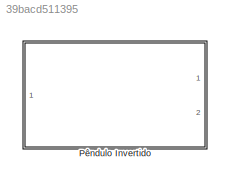
MODEL slx_39bacd511395
KIND library
CONFIG AbsTol = auto
CONFIG EnableMultiTasking = off
CONFIG FixedStep = auto
CONFIG MaxStep = auto
CONFIG MinStep = auto
CONFIG RelTol = 1e-3
CONFIG SampleTimeConstraint = Unconstrained
CONFIG Solver = VariableStepAuto
CONFIG SolverName = VariableStepAuto
CONFIG StartTime = 0.0
CONFIG StopTime = 10.0
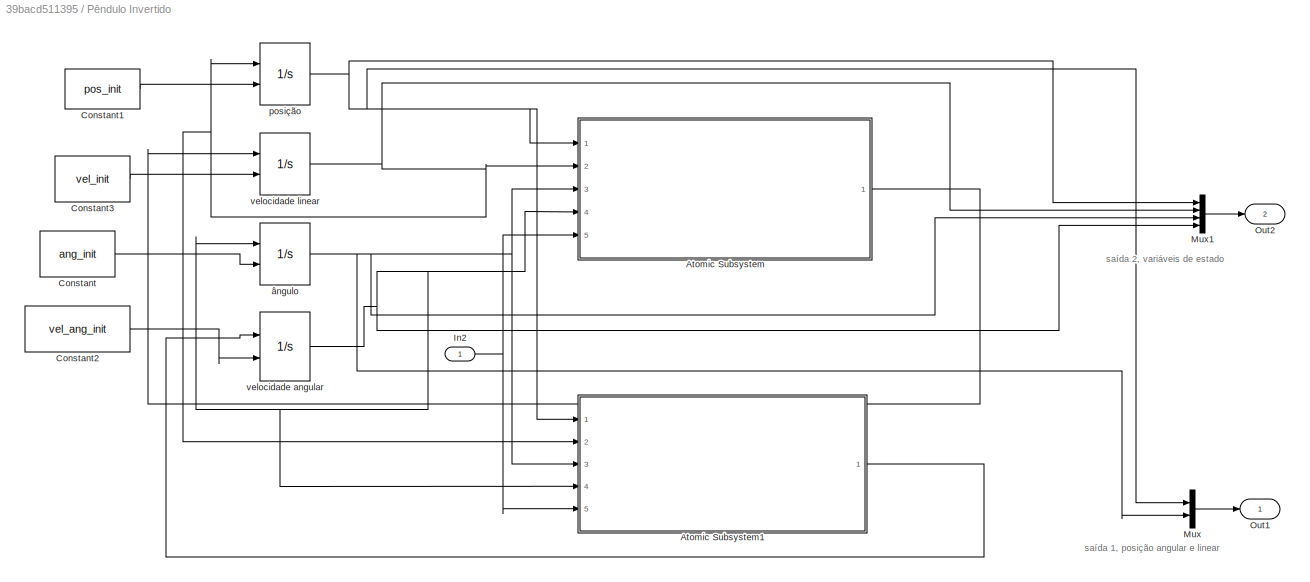
BLOCK [SubSystem] Pêndulo Invertido
  Ports = [1, 2]
  RequestExecContextInheritance = off
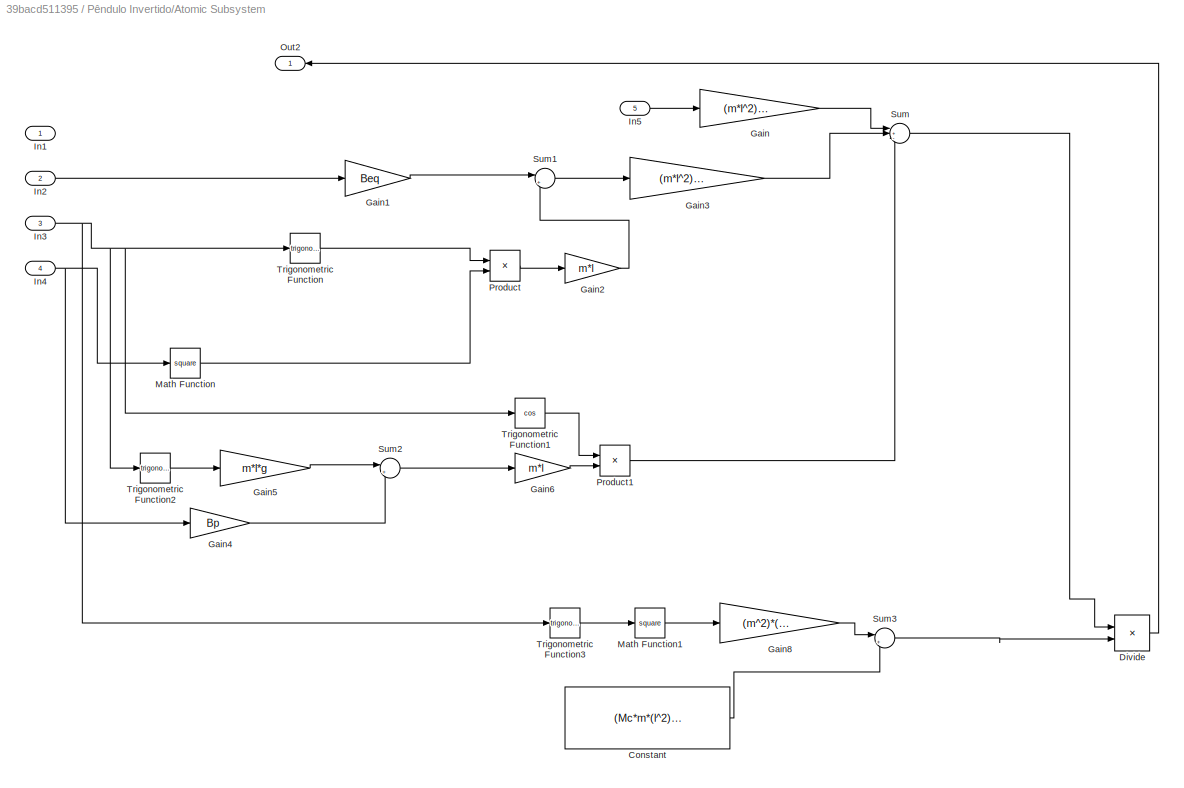
BLOCK [SubSystem] Pêndulo Invertido/Atomic Subsystem
  Ports = [5, 1]
  RequestExecContextInheritance = off
  TreatAsAtomicUnit = on
BLOCK [Constant] Pêndulo Invertido/Atomic Subsystem/Constant
  Value = (Mc*m*(l^2)) + (J*(Mc+m))
BLOCK [Product] Pêndulo Invertido/Atomic Subsystem/Divide
  InputSameDT = off
  Inputs = */
  OutDataTypeStr = Inherit: Inherit via internal rule
  Ports = [2, 1]
  RndMeth = Floor
  SaturateOnIntegerOverflow = off
BLOCK [Gain] Pêndulo Invertido/Atomic Subsystem/Gain
  Gain = (m*l^2) + J
  OutDataTypeStr = Inherit: Inherit via internal rule
  ParamDataTypeStr = Inherit: Inherit via internal rule
  SaturateOnIntegerOverflow = off
BLOCK [Gain] Pêndulo Invertido/Atomic Subsystem/Gain1
  Gain = Beq
  OutDataTypeStr = Inherit: Inherit via internal rule
  ParamDataTypeStr = Inherit: Inherit via internal rule
  SaturateOnIntegerOverflow = off
BLOCK [Gain] Pêndulo Invertido/Atomic Subsystem/Gain2
  Gain = m*l
  OutDataTypeStr = Inherit: Inherit via internal rule
  ParamDataTypeStr = Inherit: Inherit via internal rule
  SaturateOnIntegerOverflow = off
BLOCK [Gain] Pêndulo Invertido/Atomic Subsystem/Gain3
  Gain = (m*l^2) + J
  OutDataTypeStr = Inherit: Inherit via internal rule
  ParamDataTypeStr = Inherit: Inherit via internal rule
  SaturateOnIntegerOverflow = off
BLOCK [Gain] Pêndulo Invertido/Atomic Subsystem/Gain4
  Gain = Bp
  OutDataTypeStr = Inherit: Inherit via internal rule
  ParamDataTypeStr = Inherit: Inherit via internal rule
  SaturateOnIntegerOverflow = off
BLOCK [Gain] Pêndulo Invertido/Atomic Subsystem/Gain5
  Gain = m*l*g
  OutDataTypeStr = Inherit: Inherit via internal rule
  ParamDataTypeStr = Inherit: Inherit via internal rule
  SaturateOnIntegerOverflow = off
BLOCK [Gain] Pêndulo Invertido/Atomic Subsystem/Gain6
  Gain = m*l
  OutDataTypeStr = Inherit: Inherit via internal rule
  ParamDataTypeStr = Inherit: Inherit via internal rule
  SaturateOnIntegerOverflow = off
BLOCK [Gain] Pêndulo Invertido/Atomic Subsystem/Gain8
  Gain = (m^2)*(l^2)
  OutDataTypeStr = Inherit: Inherit via internal rule
  ParamDataTypeStr = Inherit: Inherit via internal rule
  SaturateOnIntegerOverflow = off
BLOCK [Inport] Pêndulo Invertido/Atomic Subsystem/In1
  IconDisplay = Port number
BLOCK [Inport] Pêndulo Invertido/Atomic Subsystem/In2
  IconDisplay = Port number
  Port = 2
BLOCK [Inport] Pêndulo Invertido/Atomic Subsystem/In3
  IconDisplay = Port number
  Port = 3
BLOCK [Inport] Pêndulo Invertido/Atomic Subsystem/In4
  IconDisplay = Port number
  Port = 4
BLOCK [Inport] Pêndulo Invertido/Atomic Subsystem/In5
  IconDisplay = Port number
  Port = 5
BLOCK [Math] Pêndulo Invertido/Atomic Subsystem/Math Function
  Operator = square
  Ports = [1, 1]
BLOCK [Math] Pêndulo Invertido/Atomic Subsystem/Math Function1
  Operator = square
  Ports = [1, 1]
BLOCK [Outport] Pêndulo Invertido/Atomic Subsystem/Out2
  IconDisplay = Port number
BLOCK [Product] Pêndulo Invertido/Atomic Subsystem/Product
  InputSameDT = off
  OutDataTypeStr = Inherit: Inherit via internal rule
  Ports = [2, 1]
  RndMeth = Floor
  SaturateOnIntegerOverflow = off
BLOCK [Product] Pêndulo Invertido/Atomic Subsystem/Product1
  InputSameDT = off
  OutDataTypeStr = Inherit: Inherit via internal rule
  Ports = [2, 1]
  RndMeth = Floor
  SaturateOnIntegerOverflow = off
BLOCK [Sum] Pêndulo Invertido/Atomic Subsystem/Sum
  IconShape = round
  InputSameDT = off
  Inputs = |+-+
  OutDataTypeStr = Inherit: Inherit via internal rule
  Ports = [3, 1]
  SaturateOnIntegerOverflow = off
BLOCK [Sum] Pêndulo Invertido/Atomic Subsystem/Sum1
  IconShape = round
  InputSameDT = off
  Inputs = |++
  OutDataTypeStr = Inherit: Inherit via internal rule
  Ports = [2, 1]
  SaturateOnIntegerOverflow = off
BLOCK [Sum] Pêndulo Invertido/Atomic Subsystem/Sum2
  IconShape = round
  InputSameDT = off
  Inputs = |+-
  OutDataTypeStr = Inherit: Inherit via internal rule
  Ports = [2, 1]
  SaturateOnIntegerOverflow = off
BLOCK [Sum] Pêndulo Invertido/Atomic Subsystem/Sum3
  IconShape = round
  InputSameDT = off
  Inputs = |++
  OutDataTypeStr = Inherit: Inherit via internal rule
  Ports = [2, 1]
  SaturateOnIntegerOverflow = off
BLOCK [Trigonometry] Pêndulo Invertido/Atomic Subsystem/Trigonometric Function
  Ports = [1, 1]
BLOCK [Trigonometry] Pêndulo Invertido/Atomic Subsystem/Trigonometric Function1
  Operator = cos
  Ports = [1, 1]
BLOCK [Trigonometry] Pêndulo Invertido/Atomic Subsystem/Trigonometric Function2
  Ports = [1, 1]
BLOCK [Trigonometry] Pêndulo Invertido/Atomic Subsystem/Trigonometric Function3
  Ports = [1, 1]
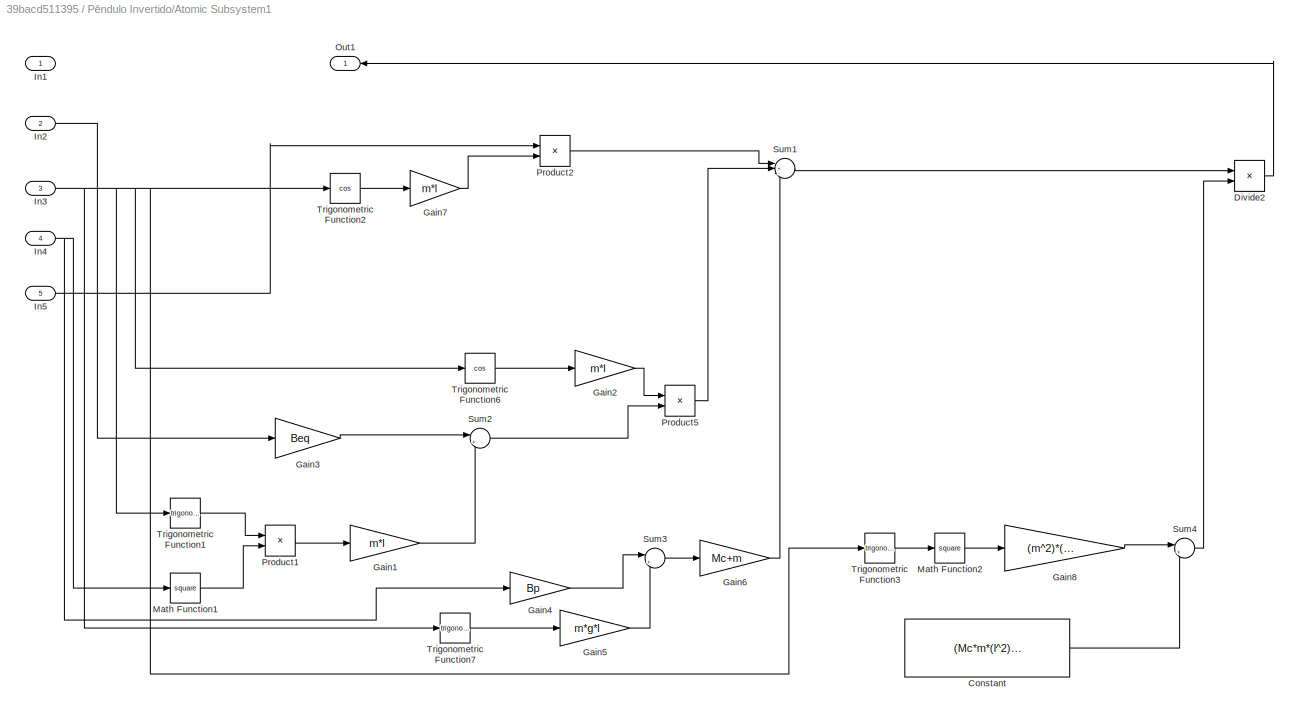
BLOCK [SubSystem] Pêndulo Invertido/Atomic Subsystem1
  Ports = [5, 1]
  RequestExecContextInheritance = off
  TreatAsAtomicUnit = on
BLOCK [Constant] Pêndulo Invertido/Atomic Subsystem1/Constant
  Value = (Mc*m*(l^2)) + (J*(Mc+m))
BLOCK [Product] Pêndulo Invertido/Atomic Subsystem1/Divide2
  InputSameDT = off
  Inputs = */
  OutDataTypeStr = Inherit: Inherit via internal rule
  Ports = [2, 1]
  RndMeth = Floor
  SaturateOnIntegerOverflow = off
BLOCK [Gain] Pêndulo Invertido/Atomic Subsystem1/Gain1
  Gain = m*l
  OutDataTypeStr = Inherit: Inherit via internal rule
  ParamDataTypeStr = Inherit: Inherit via internal rule
  SaturateOnIntegerOverflow = off
BLOCK [Gain] Pêndulo Invertido/Atomic Subsystem1/Gain2
  Gain = m*l
  OutDataTypeStr = Inherit: Inherit via internal rule
  ParamDataTypeStr = Inherit: Inherit via internal rule
  SaturateOnIntegerOverflow = off
BLOCK [Gain] Pêndulo Invertido/Atomic Subsystem1/Gain3
  Gain = Beq
  OutDataTypeStr = Inherit: Inherit via internal rule
  ParamDataTypeStr = Inherit: Inherit via internal rule
  SaturateOnIntegerOverflow = off
BLOCK [Gain] Pêndulo Invertido/Atomic Subsystem1/Gain4
  Gain = Bp
  OutDataTypeStr = Inherit: Inherit via internal rule
  ParamDataTypeStr = Inherit: Inherit via internal rule
  SaturateOnIntegerOverflow = off
BLOCK [Gain] Pêndulo Invertido/Atomic Subsystem1/Gain5
  Gain = m*g*l
  OutDataTypeStr = Inherit: Inherit via internal rule
  ParamDataTypeStr = Inherit: Inherit via internal rule
  SaturateOnIntegerOverflow = off
BLOCK [Gain] Pêndulo Invertido/Atomic Subsystem1/Gain6
  Gain = Mc+m
  OutDataTypeStr = Inherit: Inherit via internal rule
  ParamDataTypeStr = Inherit: Inherit via internal rule
  SaturateOnIntegerOverflow = off
BLOCK [Gain] Pêndulo Invertido/Atomic Subsystem1/Gain7
  Gain = m*l
  OutDataTypeStr = Inherit: Inherit via internal rule
  ParamDataTypeStr = Inherit: Inherit via internal rule
  SaturateOnIntegerOverflow = off
BLOCK [Gain] Pêndulo Invertido/Atomic Subsystem1/Gain8
  Gain = (m^2)*(l^2)
  OutDataTypeStr = Inherit: Inherit via internal rule
  ParamDataTypeStr = Inherit: Inherit via internal rule
  SaturateOnIntegerOverflow = off
BLOCK [Inport] Pêndulo Invertido/Atomic Subsystem1/In1
  IconDisplay = Port number
BLOCK [Inport] Pêndulo Invertido/Atomic Subsystem1/In2
  IconDisplay = Port number
  Port = 2
BLOCK [Inport] Pêndulo Invertido/Atomic Subsystem1/In3
  IconDisplay = Port number
  Port = 3
BLOCK [Inport] Pêndulo Invertido/Atomic Subsystem1/In4
  IconDisplay = Port number
  Port = 4
BLOCK [Inport] Pêndulo Invertido/Atomic Subsystem1/In5
  IconDisplay = Port number
  Port = 5
BLOCK [Math] Pêndulo Invertido/Atomic Subsystem1/Math Function1
  Operator = square
  Ports = [1, 1]
BLOCK [Math] Pêndulo Invertido/Atomic Subsystem1/Math Function2
  Operator = square
  Ports = [1, 1]
BLOCK [Outport] Pêndulo Invertido/Atomic Subsystem1/Out1
  IconDisplay = Port number
BLOCK [Product] Pêndulo Invertido/Atomic Subsystem1/Product1
  InputSameDT = off
  OutDataTypeStr = Inherit: Inherit via internal rule
  Ports = [2, 1]
  RndMeth = Floor
  SaturateOnIntegerOverflow = off
BLOCK [Product] Pêndulo Invertido/Atomic Subsystem1/Product2
  InputSameDT = off
  OutDataTypeStr = Inherit: Inherit via internal rule
  Ports = [2, 1]
  RndMeth = Floor
  SaturateOnIntegerOverflow = off
BLOCK [Product] Pêndulo Invertido/Atomic Subsystem1/Product5
  InputSameDT = off
  OutDataTypeStr = Inherit: Inherit via internal rule
  Ports = [2, 1]
  RndMeth = Floor
  SaturateOnIntegerOverflow = off
BLOCK [Sum] Pêndulo Invertido/Atomic Subsystem1/Sum1
  IconShape = round
  InputSameDT = off
  Inputs = |+--
  OutDataTypeStr = Inherit: Inherit via internal rule
  Ports = [3, 1]
  SaturateOnIntegerOverflow = off
BLOCK [Sum] Pêndulo Invertido/Atomic Subsystem1/Sum2
  IconShape = round
  InputSameDT = off
  Inputs = |+-
  OutDataTypeStr = Inherit: Inherit via internal rule
  Ports = [2, 1]
  SaturateOnIntegerOverflow = off
BLOCK [Sum] Pêndulo Invertido/Atomic Subsystem1/Sum3
  IconShape = round
  InputSameDT = off
  Inputs = |+-
  OutDataTypeStr = Inherit: Inherit via internal rule
  Ports = [2, 1]
  SaturateOnIntegerOverflow = off
BLOCK [Sum] Pêndulo Invertido/Atomic Subsystem1/Sum4
  IconShape = round
  InputSameDT = off
  Inputs = |++
  OutDataTypeStr = Inherit: Inherit via internal rule
  Ports = [2, 1]
  SaturateOnIntegerOverflow = off
BLOCK [Trigonometry] Pêndulo Invertido/Atomic Subsystem1/Trigonometric Function1
  Ports = [1, 1]
BLOCK [Trigonometry] Pêndulo Invertido/Atomic Subsystem1/Trigonometric Function2
  Operator = cos
  Ports = [1, 1]
BLOCK [Trigonometry] Pêndulo Invertido/Atomic Subsystem1/Trigonometric Function3
  Ports = [1, 1]
BLOCK [Trigonometry] Pêndulo Invertido/Atomic Subsystem1/Trigonometric Function6
  Operator = cos
  Ports = [1, 1]
BLOCK [Trigonometry] Pêndulo Invertido/Atomic Subsystem1/Trigonometric Function7
  Ports = [1, 1]
BLOCK [Constant] Pêndulo Invertido/Constant
  Value = ang_init
BLOCK [Constant] Pêndulo Invertido/Constant1
  Value = pos_init
BLOCK [Constant] Pêndulo Invertido/Constant2
  Value = vel_ang_init
BLOCK [Constant] Pêndulo Invertido/Constant3
  Value = vel_init
BLOCK [Inport] Pêndulo Invertido/In2
  IconDisplay = Port number
BLOCK [Mux] Pêndulo Invertido/Mux
  DisplayOption = bar
  Inputs = 2
  Ports = [2, 1]
BLOCK [Mux] Pêndulo Invertido/Mux1
  DisplayOption = bar
  Ports = [4, 1]
BLOCK [Outport] Pêndulo Invertido/Out1
  IconDisplay = Port number
BLOCK [Outport] Pêndulo Invertido/Out2
  IconDisplay = Port number
  Port = 2
BLOCK [Integrator] Pêndulo Invertido/posição 
  InitialConditionSource = external
  Ports = [2, 1]
BLOCK [Integrator] Pêndulo Invertido/velocidade angular
  InitialConditionSource = external
  Ports = [2, 1]
BLOCK [Integrator] Pêndulo Invertido/velocidade linear
  InitialConditionSource = external
  Ports = [2, 1]
BLOCK [Integrator] Pêndulo Invertido/ângulo
  InitialCondition = 0.52
  InitialConditionSource = external
  Ports = [2, 1]
ANNOTATION Pêndulo Invertido: saída 1, posição angular e linear
ANNOTATION Pêndulo Invertido: saída 2, variáveis de estado
LINE Pêndulo Invertido/Atomic Subsystem/Constant:1 -> Pêndulo Invertido/Atomic Subsystem/Sum3:2
LINE Pêndulo Invertido/Atomic Subsystem/Divide:1 -> Pêndulo Invertido/Atomic Subsystem/Out2:1
LINE Pêndulo Invertido/Atomic Subsystem/Gain1:1 -> Pêndulo Invertido/Atomic Subsystem/Sum1:1
LINE Pêndulo Invertido/Atomic Subsystem/Gain2:1 -> Pêndulo Invertido/Atomic Subsystem/Sum1:2
LINE Pêndulo Invertido/Atomic Subsystem/Gain3:1 -> Pêndulo Invertido/Atomic Subsystem/Sum:2
LINE Pêndulo Invertido/Atomic Subsystem/Gain4:1 -> Pêndulo Invertido/Atomic Subsystem/Sum2:2
LINE Pêndulo Invertido/Atomic Subsystem/Gain5:1 -> Pêndulo Invertido/Atomic Subsystem/Sum2:1
LINE Pêndulo Invertido/Atomic Subsystem/Gain6:1 -> Pêndulo Invertido/Atomic Subsystem/Product1:2
LINE Pêndulo Invertido/Atomic Subsystem/Gain8:1 -> Pêndulo Invertido/Atomic Subsystem/Sum3:1
LINE Pêndulo Invertido/Atomic Subsystem/Gain:1 -> Pêndulo Invertido/Atomic Subsystem/Sum:1
LINE Pêndulo Invertido/Atomic Subsystem/In2:1 -> Pêndulo Invertido/Atomic Subsystem/Gain1:1
NET Pêndulo Invertido/Atomic Subsystem/In3:1 -> Pêndulo Invertido/Atomic Subsystem/Trigonometric Function1:1, Pêndulo Invertido/Atomic Subsystem/Trigonometric Function2:1, Pêndulo Invertido/Atomic Subsystem/Trigonometric Function3:1, Pêndulo Invertido/Atomic Subsystem/Trigonometric Function:1
NET Pêndulo Invertido/Atomic Subsystem/In4:1 -> Pêndulo Invertido/Atomic Subsystem/Gain4:1, Pêndulo Invertido/Atomic Subsystem/Math Function:1
LINE Pêndulo Invertido/Atomic Subsystem/In5:1 -> Pêndulo Invertido/Atomic Subsystem/Gain:1
LINE Pêndulo Invertido/Atomic Subsystem/Math Function1:1 -> Pêndulo Invertido/Atomic Subsystem/Gain8:1
LINE Pêndulo Invertido/Atomic Subsystem/Math Function:1 -> Pêndulo Invertido/Atomic Subsystem/Product:2
LINE Pêndulo Invertido/Atomic Subsystem/Product1:1 -> Pêndulo Invertido/Atomic Subsystem/Sum:3
LINE Pêndulo Invertido/Atomic Subsystem/Product:1 -> Pêndulo Invertido/Atomic Subsystem/Gain2:1
LINE Pêndulo Invertido/Atomic Subsystem/Sum1:1 -> Pêndulo Invertido/Atomic Subsystem/Gain3:1
LINE Pêndulo Invertido/Atomic Subsystem/Sum2:1 -> Pêndulo Invertido/Atomic Subsystem/Gain6:1
LINE Pêndulo Invertido/Atomic Subsystem/Sum3:1 -> Pêndulo Invertido/Atomic Subsystem/Divide:2
LINE Pêndulo Invertido/Atomic Subsystem/Sum:1 -> Pêndulo Invertido/Atomic Subsystem/Divide:1
LINE Pêndulo Invertido/Atomic Subsystem/Trigonometric Function1:1 -> Pêndulo Invertido/Atomic Subsystem/Product1:1
LINE Pêndulo Invertido/Atomic Subsystem/Trigonometric Function2:1 -> Pêndulo Invertido/Atomic Subsystem/Gain5:1
LINE Pêndulo Invertido/Atomic Subsystem/Trigonometric Function3:1 -> Pêndulo Invertido/Atomic Subsystem/Math Function1:1
LINE Pêndulo Invertido/Atomic Subsystem/Trigonometric Function:1 -> Pêndulo Invertido/Atomic Subsystem/Product:1
LINE Pêndulo Invertido/Atomic Subsystem1/Constant:1 -> Pêndulo Invertido/Atomic Subsystem1/Sum4:2
LINE Pêndulo Invertido/Atomic Subsystem1/Divide2:1 -> Pêndulo Invertido/Atomic Subsystem1/Out1:1
LINE Pêndulo Invertido/Atomic Subsystem1/Gain1:1 -> Pêndulo Invertido/Atomic Subsystem1/Sum2:2
LINE Pêndulo Invertido/Atomic Subsystem1/Gain2:1 -> Pêndulo Invertido/Atomic Subsystem1/Product5:1
LINE Pêndulo Invertido/Atomic Subsystem1/Gain3:1 -> Pêndulo Invertido/Atomic Subsystem1/Sum2:1
LINE Pêndulo Invertido/Atomic Subsystem1/Gain4:1 -> Pêndulo Invertido/Atomic Subsystem1/Sum3:1
LINE Pêndulo Invertido/Atomic Subsystem1/Gain5:1 -> Pêndulo Invertido/Atomic Subsystem1/Sum3:2
LINE Pêndulo Invertido/Atomic Subsystem1/Gain6:1 -> Pêndulo Invertido/Atomic Subsystem1/Sum1:3
LINE Pêndulo Invertido/Atomic Subsystem1/Gain7:1 -> Pêndulo Invertido/Atomic Subsystem1/Product2:2
LINE Pêndulo Invertido/Atomic Subsystem1/Gain8:1 -> Pêndulo Invertido/Atomic Subsystem1/Sum4:1
LINE Pêndulo Invertido/Atomic Subsystem1/In2:1 -> Pêndulo Invertido/Atomic Subsystem1/Gain3:1
NET Pêndulo Invertido/Atomic Subsystem1/In3:1 -> Pêndulo Invertido/Atomic Subsystem1/Trigonometric Function1:1, Pêndulo Invertido/Atomic Subsystem1/Trigonometric Function2:1, Pêndulo Invertido/Atomic Subsystem1/Trigonometric Function3:1, Pêndulo Invertido/Atomic Subsystem1/Trigonometric Function6:1, Pêndulo Invertido/Atomic Subsystem1/Trigonometric Function7:1
NET Pêndulo Invertido/Atomic Subsystem1/In4:1 -> Pêndulo Invertido/Atomic Subsystem1/Gain4:1, Pêndulo Invertido/Atomic Subsystem1/Math Function1:1
LINE Pêndulo Invertido/Atomic Subsystem1/In5:1 -> Pêndulo Invertido/Atomic Subsystem1/Product2:1
LINE Pêndulo Invertido/Atomic Subsystem1/Math Function1:1 -> Pêndulo Invertido/Atomic Subsystem1/Product1:2
LINE Pêndulo Invertido/Atomic Subsystem1/Math Function2:1 -> Pêndulo Invertido/Atomic Subsystem1/Gain8:1
LINE Pêndulo Invertido/Atomic Subsystem1/Product1:1 -> Pêndulo Invertido/Atomic Subsystem1/Gain1:1
LINE Pêndulo Invertido/Atomic Subsystem1/Product2:1 -> Pêndulo Invertido/Atomic Subsystem1/Sum1:1
LINE Pêndulo Invertido/Atomic Subsystem1/Product5:1 -> Pêndulo Invertido/Atomic Subsystem1/Sum1:2
LINE Pêndulo Invertido/Atomic Subsystem1/Sum1:1 -> Pêndulo Invertido/Atomic Subsystem1/Divide2:1
LINE Pêndulo Invertido/Atomic Subsystem1/Sum2:1 -> Pêndulo Invertido/Atomic Subsystem1/Product5:2
LINE Pêndulo Invertido/Atomic Subsystem1/Sum3:1 -> Pêndulo Invertido/Atomic Subsystem1/Gain6:1
LINE Pêndulo Invertido/Atomic Subsystem1/Sum4:1 -> Pêndulo Invertido/Atomic Subsystem1/Divide2:2
LINE Pêndulo Invertido/Atomic Subsystem1/Trigonometric Function1:1 -> Pêndulo Invertido/Atomic Subsystem1/Product1:1
LINE Pêndulo Invertido/Atomic Subsystem1/Trigonometric Function2:1 -> Pêndulo Invertido/Atomic Subsystem1/Gain7:1
LINE Pêndulo Invertido/Atomic Subsystem1/Trigonometric Function3:1 -> Pêndulo Invertido/Atomic Subsystem1/Math Function2:1
LINE Pêndulo Invertido/Atomic Subsystem1/Trigonometric Function6:1 -> Pêndulo Invertido/Atomic Subsystem1/Gain2:1
LINE Pêndulo Invertido/Atomic Subsystem1/Trigonometric Function7:1 -> Pêndulo Invertido/Atomic Subsystem1/Gain5:1
LINE Pêndulo Invertido/Atomic Subsystem1:1 -> Pêndulo Invertido/velocidade angular:1
LINE Pêndulo Invertido/Atomic Subsystem:1 -> Pêndulo Invertido/velocidade linear:1
LINE Pêndulo Invertido/Constant1:1 -> Pêndulo Invertido/posição :2
LINE Pêndulo Invertido/Constant2:1 -> Pêndulo Invertido/velocidade angular:2
LINE Pêndulo Invertido/Constant3:1 -> Pêndulo Invertido/velocidade linear:2
LINE Pêndulo Invertido/Constant:1 -> Pêndulo Invertido/ângulo:2
NET Pêndulo Invertido/In2:1 -> Pêndulo Invertido/Atomic Subsystem1:5, Pêndulo Invertido/Atomic Subsystem:5
LINE Pêndulo Invertido/Mux1:1 -> Pêndulo Invertido/Out2:1
LINE Pêndulo Invertido/Mux:1 -> Pêndulo Invertido/Out1:1
NET Pêndulo Invertido/posição :1 -> Pêndulo Invertido/Atomic Subsystem1:1, Pêndulo Invertido/Atomic Subsystem:1, Pêndulo Invertido/Mux1:1, Pêndulo Invertido/Mux:1
NET Pêndulo Invertido/velocidade angular:1 -> Pêndulo Invertido/Atomic Subsystem1:4, Pêndulo Invertido/Atomic Subsystem:4, Pêndulo Invertido/Mux1:4, Pêndulo Invertido/ângulo:1
NET Pêndulo Invertido/velocidade linear:1 -> Pêndulo Invertido/Atomic Subsystem1:2, Pêndulo Invertido/Atomic Subsystem:2, Pêndulo Invertido/Mux1:2, Pêndulo Invertido/posição :1
NET Pêndulo Invertido/ângulo:1 -> Pêndulo Invertido/Atomic Subsystem1:3, Pêndulo Invertido/Atomic Subsystem:3, Pêndulo Invertido/Mux1:3, Pêndulo Invertido/Mux:2
note: NET lines group one-source signal fan-out (src -> all destinations, sorted); 1:1 wires keep LINE
